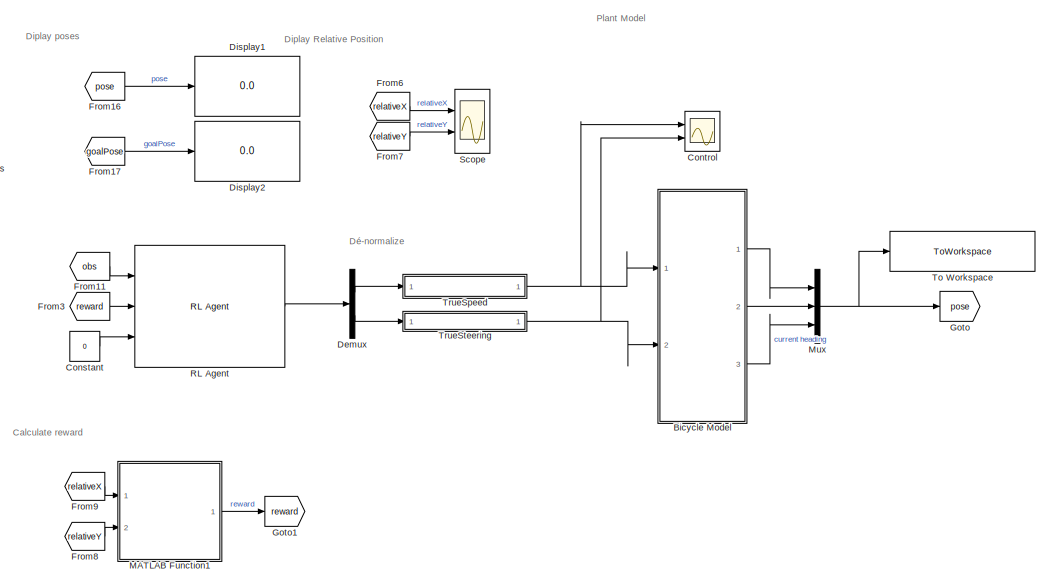
[diagram: root canvas - part 1/2, right side, full height]
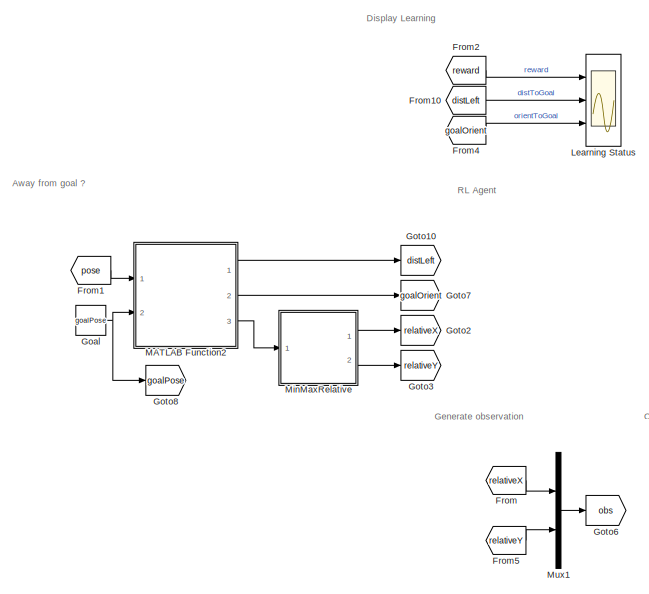
[diagram: root canvas - part 2/2, left side, full height]
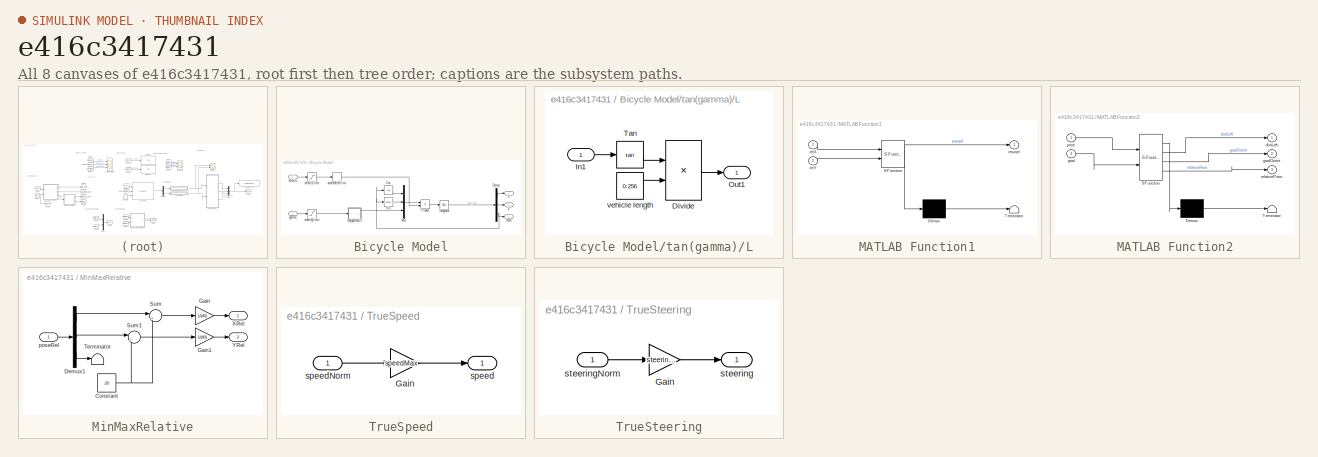
[diagram: thumbnail index - all 8 canvases of the model, root first then tree order]
MODEL slx_e416c3417431
KIND model
CONFIG AbsTol = auto
CONFIG EnableMultiTasking = off
CONFIG FixedStep = auto
CONFIG MaxStep = auto
CONFIG MinStep = auto
CONFIG RelTol = 1e-3
CONFIG SampleTimeConstraint = Unconstrained
CONFIG SolverName = VariableStepAuto
CONFIG StartTime = 0.0
CONFIG StopTime = 200
WORKSPACE source: mxarray member
WORKSPACE Sig: Simulink.Signal (value not decoded)
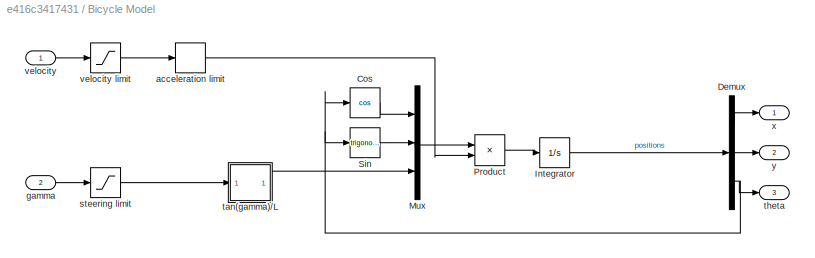
BLOCK [SubSystem] Bicycle Model
  Ports = [2, 3]
  RequestExecContextInheritance = off
BLOCK [Trigonometry] Bicycle Model/Cos
  Operator = cos
  Ports = [1, 1]
BLOCK [Demux] Bicycle Model/Demux
  Outputs = 3
  Ports = [1, 3]
BLOCK [Integrator] Bicycle Model/Integrator
  InitialCondition = startPose
  Ports = [1, 1]
BLOCK [Mux] Bicycle Model/Mux
  DisplayOption = bar
  Inputs = 3
  Ports = [3, 1]
BLOCK [Product] Bicycle Model/Product
  Ports = [2, 1]
BLOCK [Trigonometry] Bicycle Model/Sin
  Ports = [1, 1]
BLOCK [RateLimiter] Bicycle Model/acceleration limit
  RisingSlewLimit = 0.2
  SampleTimeMode = inherited
BLOCK [Inport] Bicycle Model/gamma
  Port = 2
BLOCK [Saturate] Bicycle Model/steering limit
  LowerLimit = -steeringRange
  UpperLimit = steeringRange
BLOCK [SubSystem] Bicycle Model/tan(gamma)//L
  Ports = [1, 1]
  RequestExecContextInheritance = off
BLOCK [Product] Bicycle Model/tan(gamma)//L/Divide
  Inputs = */
  Ports = [2, 1]
BLOCK [Inport] Bicycle Model/tan(gamma)//L/In1
BLOCK [Outport] Bicycle Model/tan(gamma)//L/Out1
BLOCK [Trigonometry] Bicycle Model/tan(gamma)//L/Tan
  Operator = tan
  Ports = [1, 1]
BLOCK [Constant] Bicycle Model/tan(gamma)//L/vehicle length
  Value = 0.256
BLOCK [Outport] Bicycle Model/theta
  Port = 3
BLOCK [Inport] Bicycle Model/velocity
BLOCK [Saturate] Bicycle Model/velocity limit
  LowerLimit = -speedMax
  UpperLimit = speedMax
BLOCK [Outport] Bicycle Model/x
BLOCK [Outport] Bicycle Model/y
  Port = 2
BLOCK [Constant] Constant
  Value = 0
BLOCK [Scope] Control
  Floating = off
  NumInputPorts = 2
  Ports = [2]
  ScopeSpecificationString = Simulink.scopes.TimeScopeBlockCfg('CurrentConfiguration', extmgr.ConfigurationSet(extmgr.Configuration('Core','General UI',true),extmgr.Configuration('Core','Source UI',true),extmgr.Configuration('Sources','WiredSimulink',true,'DataLoggingVariableName','ScopeData1'),extmgr.Configuration('Visuals','Time Domain',true,'SerializedDisplays',{struct('MinYLimReal','-0.25','MaxYLimReal','0.25','YLabelReal...<+2044ch>
BLOCK [Demux] Demux
  Outputs = 2
  Ports = [1, 2]
BLOCK [Display] Display1
  Decimation = 1
  Ports = [1]
BLOCK [Display] Display2
  Decimation = 1
  Ports = [1]
BLOCK [From] From
  GotoTag = relativeX
BLOCK [From] From1
  GotoTag = pose
BLOCK [From] From10
  GotoTag = distLeft
BLOCK [From] From11
  GotoTag = obs
BLOCK [From] From16
  GotoTag = pose
BLOCK [From] From17
  GotoTag = goalPose
BLOCK [From] From2
  GotoTag = reward
BLOCK [From] From3
  GotoTag = reward
BLOCK [From] From4
  GotoTag = goalOrient
BLOCK [From] From5
  GotoTag = relativeY
BLOCK [From] From6
  GotoTag = relativeX
BLOCK [From] From7
  GotoTag = relativeY
BLOCK [From] From8
  GotoTag = relativeY
BLOCK [From] From9
  GotoTag = relativeX
BLOCK [Constant] Goal
  Value = goalPose
BLOCK [Goto] Goto
  GotoTag = pose
BLOCK [Goto] Goto1
  GotoTag = reward
BLOCK [Goto] Goto10
  GotoTag = distLeft
BLOCK [Goto] Goto2
  GotoTag = relativeX
BLOCK [Goto] Goto3
  GotoTag = relativeY
BLOCK [Goto] Goto6
  GotoTag = obs
BLOCK [Goto] Goto7
  GotoTag = goalOrient
BLOCK [Goto] Goto8
  GotoTag = goalPose
BLOCK [Scope] Learning Status
  Floating = off
  NumInputPorts = 3
  Ports = [3]
  ScopeSpecificationString = Simulink.scopes.TimeScopeBlockCfg('CurrentConfiguration', extmgr.ConfigurationSet(extmgr.Configuration('Core','General UI',true),extmgr.Configuration('Core','Source UI',true),extmgr.Configuration('Sources','WiredSimulink',true),extmgr.Configuration('Visuals','Time Domain',true,'SerializedDisplays',{struct('MinYLimReal','-5','MaxYLimReal','5','YLabelReal','','MinYLimMag','0.00000','MaxYLimMag','5.0...<+2724ch>
BLOCK [SubSystem] MATLAB Function1
  ErrorFcn = Stateflow.Translate.translate
  PermitHierarchicalResolution = ExplicitOnly
  Ports = [2, 1]
  RequestExecContextInheritance = off
  SFBlockType = MATLAB Function
  TreatAsAtomicUnit = on
BLOCK [Demux] MATLAB Function1/ Demux 
  Outputs = 1
  Ports = [1, 1]
BLOCK [S-Function] MATLAB Function1/ SFunction 
  EnableBusSupport = on
  FunctionName = sf_sfun
  PortCounts = [2 2]
  Ports = [2, 2]
  SFcnIsStateOwnerBlock = off
  SFunctionDeploymentMode = off
  Tag = Stateflow S-Function 1
BLOCK [Terminator] MATLAB Function1/ Terminator 
BLOCK [Inport] MATLAB Function1/relX
BLOCK [Inport] MATLAB Function1/relY
  Port = 2
BLOCK [Outport] MATLAB Function1/reward
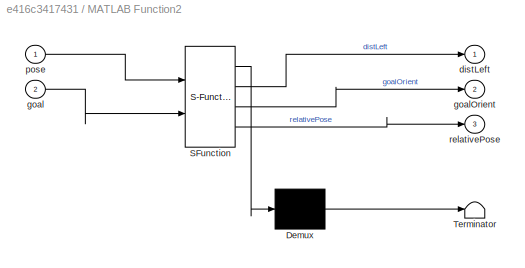
BLOCK [SubSystem] MATLAB Function2
  ErrorFcn = Stateflow.Translate.translate
  PermitHierarchicalResolution = ExplicitOnly
  Ports = [2, 3]
  RequestExecContextInheritance = off
  SFBlockType = MATLAB Function
  TreatAsAtomicUnit = on
BLOCK [Demux] MATLAB Function2/ Demux 
  Outputs = 1
  Ports = [1, 1]
BLOCK [S-Function] MATLAB Function2/ SFunction 
  EnableBusSupport = on
  FunctionName = sf_sfun
  PortCounts = [2 4]
  Ports = [2, 4]
  SFcnIsStateOwnerBlock = off
  SFunctionDeploymentMode = off
  Tag = Stateflow S-Function 3
BLOCK [Terminator] MATLAB Function2/ Terminator 
BLOCK [Outport] MATLAB Function2/distLeft
BLOCK [Inport] MATLAB Function2/goal
  Port = 2
BLOCK [Outport] MATLAB Function2/goalOrient
  Port = 2
BLOCK [Inport] MATLAB Function2/pose
BLOCK [Outport] MATLAB Function2/relativePose
  Port = 3
BLOCK [SubSystem] MinMaxRelative
  Ports = [1, 2]
  RequestExecContextInheritance = off
BLOCK [Constant] MinMaxRelative/Constant
  Value = -20
BLOCK [Demux] MinMaxRelative/Demux1
  Outputs = 3
  Ports = [1, 3]
BLOCK [Gain] MinMaxRelative/Gain
  Gain = 1/(40)
BLOCK [Gain] MinMaxRelative/Gain1
  Gain = 1/(40)
BLOCK [Sum] MinMaxRelative/Sum
  Inputs = |+-
  Ports = [2, 1]
BLOCK [Sum] MinMaxRelative/Sum1
  Inputs = |+-
  Ports = [2, 1]
BLOCK [Terminator] MinMaxRelative/Terminator
BLOCK [Outport] MinMaxRelative/XRel
BLOCK [Outport] MinMaxRelative/YRel
  Port = 2
BLOCK [Inport] MinMaxRelative/poseRel
BLOCK [Mux] Mux
  DisplayOption = bar
  Inputs = 3
  Ports = [3, 1]
BLOCK [Mux] Mux1
  DisplayOption = bar
  Inputs = 2
  Ports = [2, 1]
BLOCK [Reference] RL Agent  REF=rllib/RL Agent
  Ports = [3, 1]
  SourceBlock = rllib/RL Agent
  SourceProductBaseCode = RL
  SourceType = RL Agent
BLOCK [Scope] Scope
  Floating = off
  NumInputPorts = 2
  Ports = [2]
  ScopeSpecificationString = Simulink.scopes.TimeScopeBlockCfg('CurrentConfiguration', extmgr.ConfigurationSet(extmgr.Configuration('Core','General UI',true),extmgr.Configuration('Core','Source UI',true),extmgr.Configuration('Sources','WiredSimulink',true,'DataLoggingVariableName','ScopeData1'),extmgr.Configuration('Visuals','Time Domain',true,'SerializedDisplays',{struct('MinYLimReal','0','MaxYLimReal','1','YLabelReal','','M...<+1457ch>
BLOCK [ToWorkspace] To Workspace
  FixptAsFi = on
  MaxDataPoints = inf
  Ports = [1]
  SampleTime = -1
  VariableName = BicyclePose
BLOCK [SubSystem] TrueSpeed
  Ports = [1, 1]
  RequestExecContextInheritance = off
BLOCK [Gain] TrueSpeed/Gain
  Gain = speedMax
BLOCK [Outport] TrueSpeed/speed
BLOCK [Inport] TrueSpeed/speedNorm
BLOCK [SubSystem] TrueSteering
  Ports = [1, 1]
  RequestExecContextInheritance = off
BLOCK [Gain] TrueSteering/Gain
  Gain = steeringRange
BLOCK [Outport] TrueSteering/steering
BLOCK [Inport] TrueSteering/steeringNorm
ANNOTATION (root): Away from goal ?
ANNOTATION (root): Calculate reward
ANNOTATION (root): Diplay Relative Position
ANNOTATION (root): Diplay poses
ANNOTATION (root): Display Learning
ANNOTATION (root): Dé-normalize
ANNOTATION (root): Generate observation
ANNOTATION (root): Plant Model
ANNOTATION (root): RL Agent
LINE Bicycle Model/Cos:1 -> Bicycle Model/Mux:1
LINE Bicycle Model/Demux:1 -> Bicycle Model/x:1
LINE Bicycle Model/Demux:2 -> Bicycle Model/y:1
NET Bicycle Model/Demux:3 -> Bicycle Model/Cos:1, Bicycle Model/Sin:1, Bicycle Model/theta:1
LINE Bicycle Model/Integrator:1 -> Bicycle Model/Demux:1
LINE Bicycle Model/Mux:1 -> Bicycle Model/Product:1
LINE Bicycle Model/Product:1 -> Bicycle Model/Integrator:1
LINE Bicycle Model/Sin:1 -> Bicycle Model/Mux:2
LINE Bicycle Model/acceleration limit:1 -> Bicycle Model/Product:2
LINE Bicycle Model/gamma:1 -> Bicycle Model/steering limit:1
LINE Bicycle Model/steering limit:1 -> Bicycle Model/tan(gamma)//L:1
LINE Bicycle Model/tan(gamma)//L/Divide:1 -> Bicycle Model/tan(gamma)//L/Out1:1
LINE Bicycle Model/tan(gamma)//L/In1:1 -> Bicycle Model/tan(gamma)//L/Tan:1
LINE Bicycle Model/tan(gamma)//L/Tan:1 -> Bicycle Model/tan(gamma)//L/Divide:1
LINE Bicycle Model/tan(gamma)//L/vehicle length:1 -> Bicycle Model/tan(gamma)//L/Divide:2
LINE Bicycle Model/tan(gamma)//L:1 -> Bicycle Model/Mux:3
LINE Bicycle Model/velocity limit:1 -> Bicycle Model/acceleration limit:1
LINE Bicycle Model/velocity:1 -> Bicycle Model/velocity limit:1
LINE Bicycle Model:1 -> Mux:1
LINE Bicycle Model:2 -> Mux:2
LINE Bicycle Model:3 -> Mux:3
LINE Constant:1 -> RL Agent:3
LINE Demux:1 -> TrueSpeed:1
LINE Demux:2 -> TrueSteering:1
LINE From10:1 -> Learning Status:2
LINE From11:1 -> RL Agent:1
LINE From16:1 -> Display1:1
LINE From17:1 -> Display2:1
LINE From1:1 -> MATLAB Function2:1
LINE From2:1 -> Learning Status:1
LINE From3:1 -> RL Agent:2
LINE From4:1 -> Learning Status:3
LINE From5:1 -> Mux1:2
LINE From6:1 -> Scope:1
LINE From7:1 -> Scope:2
LINE From8:1 -> MATLAB Function1:2
LINE From9:1 -> MATLAB Function1:1
LINE From:1 -> Mux1:1
NET Goal:1 -> Goto8:1, MATLAB Function2:2
LINE MATLAB Function1:1 -> Goto1:1
LINE MATLAB Function2:1 -> Goto10:1
LINE MATLAB Function2:2 -> Goto7:1
LINE MATLAB Function2:3 -> MinMaxRelative:1
NET MinMaxRelative/Constant:1 -> MinMaxRelative/Sum1:2, MinMaxRelative/Sum:2
LINE MinMaxRelative/Demux1:1 -> MinMaxRelative/Sum:1
LINE MinMaxRelative/Demux1:2 -> MinMaxRelative/Sum1:1
LINE MinMaxRelative/Demux1:3 -> MinMaxRelative/Terminator:1
LINE MinMaxRelative/Gain1:1 -> MinMaxRelative/YRel:1
LINE MinMaxRelative/Gain:1 -> MinMaxRelative/XRel:1
LINE MinMaxRelative/Sum1:1 -> MinMaxRelative/Gain1:1
LINE MinMaxRelative/Sum:1 -> MinMaxRelative/Gain:1
LINE MinMaxRelative/poseRel:1 -> MinMaxRelative/Demux1:1
LINE MinMaxRelative:1 -> Goto2:1
LINE MinMaxRelative:2 -> Goto3:1
LINE Mux1:1 -> Goto6:1
NET Mux:1 -> Goto:1, To Workspace:1
LINE RL Agent:1 -> Demux:1
LINE TrueSpeed/Gain:1 -> TrueSpeed/speed:1
LINE TrueSpeed/speedNorm:1 -> TrueSpeed/Gain:1
NET TrueSpeed:1 -> Bicycle Model:1, Control:1
LINE TrueSteering/Gain:1 -> TrueSteering/steering:1
LINE TrueSteering/steeringNorm:1 -> TrueSteering/Gain:1
NET TrueSteering:1 -> Bicycle Model:2, Control:2
note: NET lines group one-source signal fan-out (src -> all destinations, sorted); 1:1 wires keep LINE
CHART MATLAB Function1 states=1 transitions=1
  STATE_LABEL 'eML_blk_kernel()'
  STATE_LABEL 'SCRIPT:\nfunction reward = calcRew(relX, relY)\n    % Fonction de calcul de recompense\n    \n    % 0.5 < distLeft < sqrt(20^2 + 20^2)\n    offset = 0.1 / 40;\n    if (relX > 0.5-offset) && (relX < 0.5+offset) && (relY > 0.5-offset) && (relY < 0.5+offset)\n        % Arrivé au point : récompense\n        reward = 5;\n    elseif ((relX > 0.5-offset) && (relX < 0.5+offset)) || ((relY > 0.5-offset) &&(relY < 0...<+139ch>'
CHART MATLAB Function2 states=1 transitions=1
  STATE_LABEL 'eML_blk_kernel()'
  STATE_LABEL 'SCRIPT:\nfunction [distLeft, goalOrient, relativePose] = goalDiff(pose, goal)\n    relativePose = goal - pose;\n\ndistLeft = sqrt(relativePose(1).^2+relativePose(2).^2);\ngoalOrient = atan2(relativePose(2),relativePose(1));\n'
CHART  states=0 transitions=0
CHART  states=0 transitions=0
